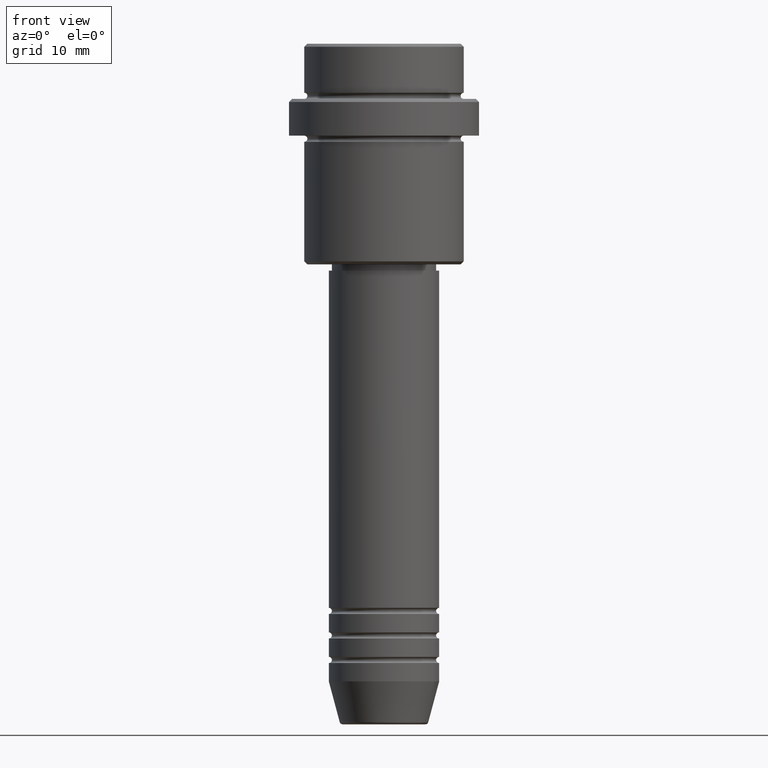
[diagram: clean part render]
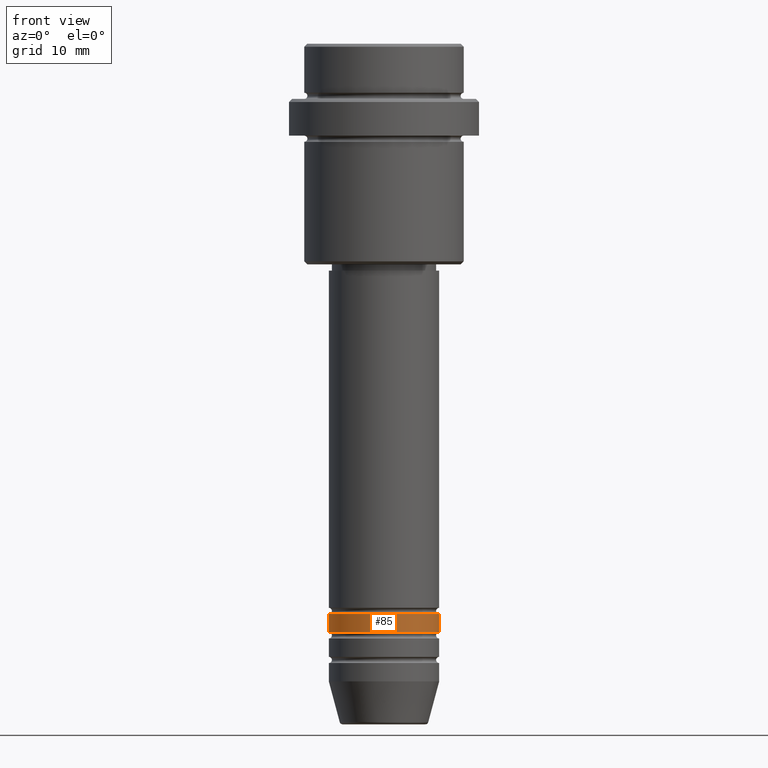
[diagram: same view with one face highlighted and labeled with its STEP entity id]
A machine part, front view. The second image highlights one B-rep face of the part: STEP entity #85.
In plain terms, the highlighted cylindrical surface (partial cylindrical patch) has radius 9 mm, axis along (-0, -0, 1).
Its self-contained STEP definition (entity closure, byte-faithful):
#80 = EDGE_LOOP ( 'NONE', ( #1232, #432, #167, #629 ) ) ;
#85 = ADVANCED_FACE ( 'NONE', ( #601 ), #706, .T. ) ;
#159 = VERTEX_POINT ( 'NONE', #617 ) ;
#167 = ORIENTED_EDGE ( 'NONE', *, *, #1312, .T. ) ;
#176 = DIRECTION ( 'NONE',  ( -0.000000000000000000, -0.000000000000000000, 1.000000000000000000 ) ) ;
#243 = AXIS2_PLACEMENT_3D ( 'NONE', #1369, #820, #671 ) ;
#257 = CARTESIAN_POINT ( 'NONE',  ( -9.000000000000000000, 1.102182119232617714E-15, 0.000000000000000000 ) ) ;
#284 = CARTESIAN_POINT ( 'NONE',  ( 0.000000000000000000, 0.000000000000000000, -92.99999999999988631 ) ) ;
#337 = VECTOR ( 'NONE', #625, 1000.000000000000000 ) ;
#369 = CARTESIAN_POINT ( 'NONE',  ( -9.000000000000000000, 1.102182119232617714E-15, -92.99999999999988631 ) ) ;
#432 = ORIENTED_EDGE ( 'NONE', *, *, #901, .T. ) ;
#467 = CARTESIAN_POINT ( 'NONE',  ( -9.000000000000000000, 1.102182119232617714E-15, -95.99999999999988631 ) ) ;
#480 = CIRCLE ( 'NONE', #839, 9.000000000000000000 ) ;
#497 = VERTEX_POINT ( 'NONE', #467 ) ;
#522 = CIRCLE ( 'NONE', #1153, 9.000000000000000000 ) ;
#601 = FACE_OUTER_BOUND ( 'NONE', #80, .T. ) ;
#617 = CARTESIAN_POINT ( 'NONE',  ( 9.000000000000000000, 0.000000000000000000, -92.99999999999988631 ) ) ;
#625 = DIRECTION ( 'NONE',  ( -0.000000000000000000, -0.000000000000000000, 1.000000000000000000 ) ) ;
#629 = ORIENTED_EDGE ( 'NONE', *, *, #1290, .F. ) ;
#671 = DIRECTION ( 'NONE',  ( 1.000000000000000000, 0.000000000000000000, 0.000000000000000000 ) ) ;
#706 = CYLINDRICAL_SURFACE ( 'NONE', #243, 9.000000000000000000 ) ;
#707 = DIRECTION ( 'NONE',  ( 1.000000000000000000, 0.000000000000000000, 0.000000000000000000 ) ) ;
#721 = LINE ( 'NONE', #832, #1227 ) ;
#820 = DIRECTION ( 'NONE',  ( -0.000000000000000000, -0.000000000000000000, 1.000000000000000000 ) ) ;
#821 = EDGE_CURVE ( 'NONE', #497, #886, #952, .T. ) ;
#832 = CARTESIAN_POINT ( 'NONE',  ( 9.000000000000000000, 0.000000000000000000, 0.000000000000000000 ) ) ;
#839 = AXIS2_PLACEMENT_3D ( 'NONE', #284, #176, #1146 ) ;
#886 = VERTEX_POINT ( 'NONE', #369 ) ;
#901 = EDGE_CURVE ( 'NONE', #497, #1248, #522, .T. ) ;
#943 = CARTESIAN_POINT ( 'NONE',  ( 9.000000000000000000, 0.000000000000000000, -95.99999999999988631 ) ) ;
#952 = LINE ( 'NONE', #257, #337 ) ;
#1028 = DIRECTION ( 'NONE',  ( -0.000000000000000000, -0.000000000000000000, 1.000000000000000000 ) ) ;
#1146 = DIRECTION ( 'NONE',  ( 1.000000000000000000, 0.000000000000000000, 0.000000000000000000 ) ) ;
#1153 = AXIS2_PLACEMENT_3D ( 'NONE', #1245, #1028, #707 ) ;
#1227 = VECTOR ( 'NONE', #1279, 1000.000000000000000 ) ;
#1232 = ORIENTED_EDGE ( 'NONE', *, *, #821, .F. ) ;
#1245 = CARTESIAN_POINT ( 'NONE',  ( 0.000000000000000000, 0.000000000000000000, -95.99999999999988631 ) ) ;
#1248 = VERTEX_POINT ( 'NONE', #943 ) ;
#1279 = DIRECTION ( 'NONE',  ( -0.000000000000000000, -0.000000000000000000, 1.000000000000000000 ) ) ;
#1290 = EDGE_CURVE ( 'NONE', #886, #159, #480, .T. ) ;
#1312 = EDGE_CURVE ( 'NONE', #1248, #159, #721, .T. ) ;
#1369 = CARTESIAN_POINT ( 'NONE',  ( 0.000000000000000000, 0.000000000000000000, 0.000000000000000000 ) ) ;